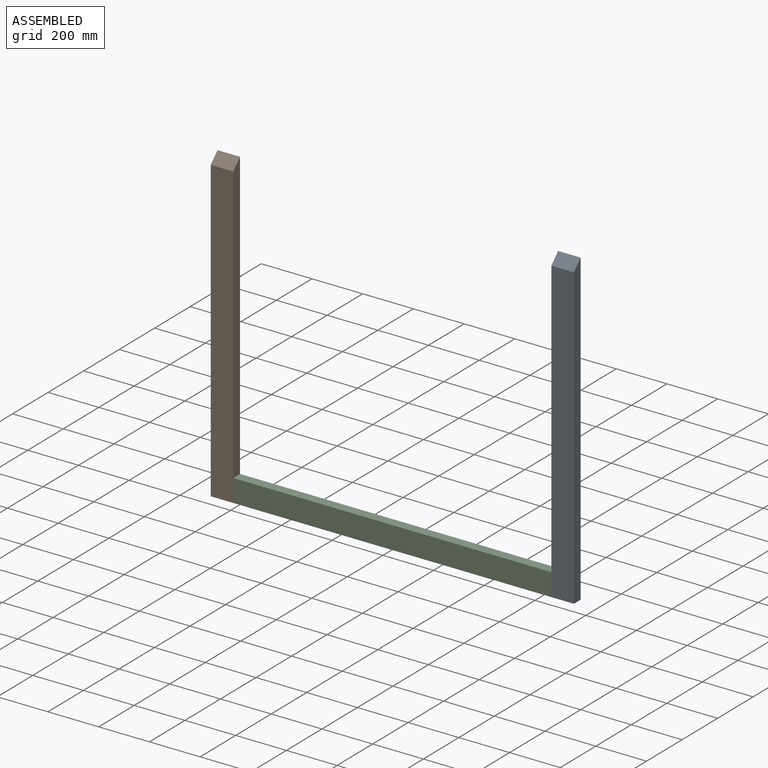
[diagram: assembled view]
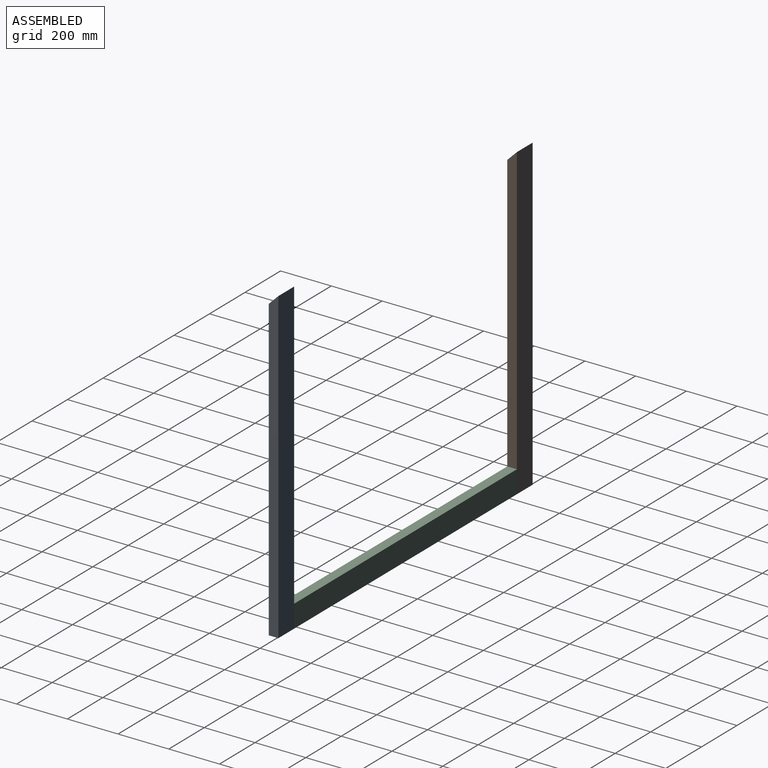
[diagram: assembled view, second angle]
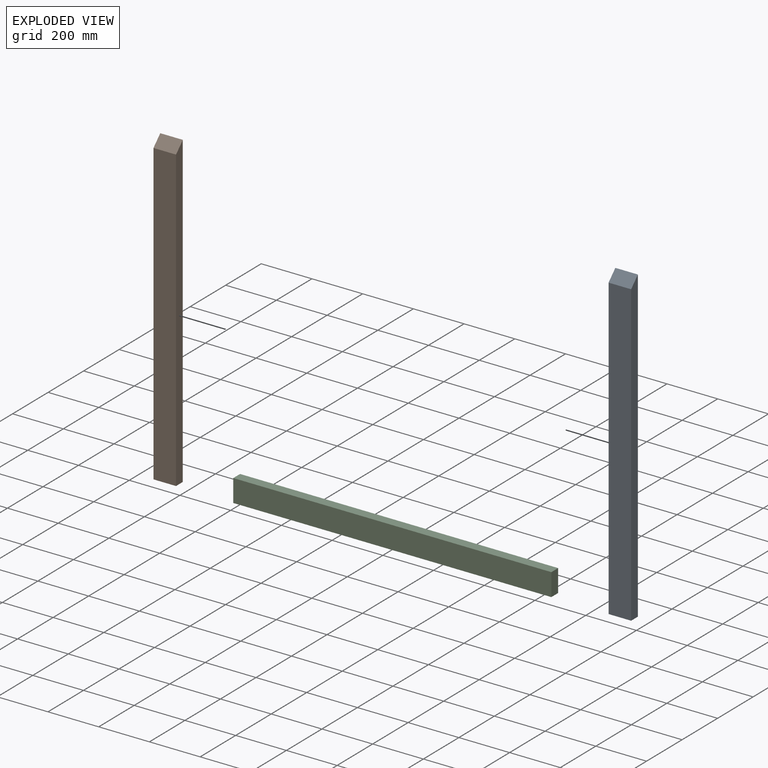
[diagram: exploded view]
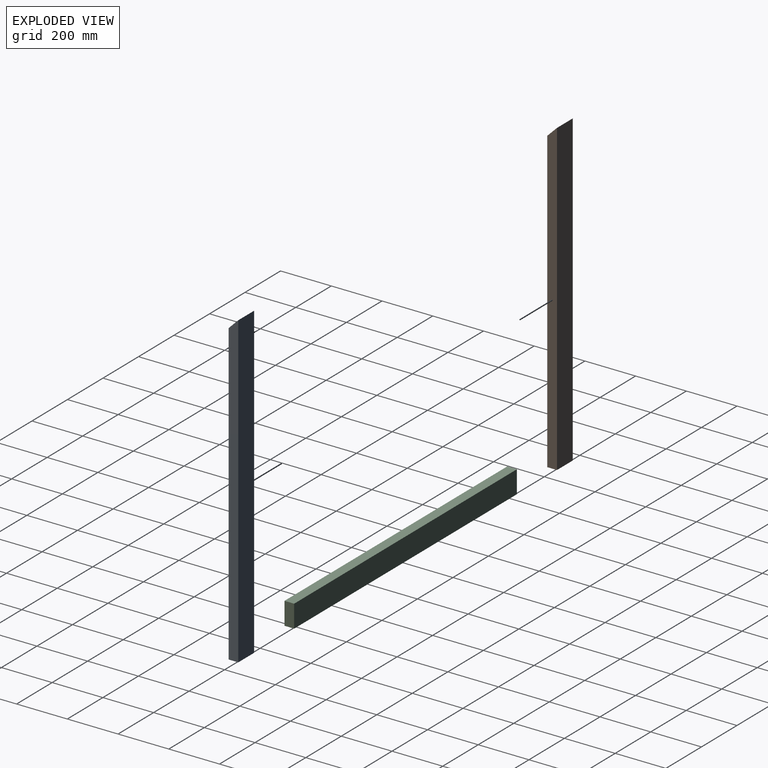
[diagram: exploded view, second angle]
ASSEMBLY  parts=3 mates=2
PART A: 6 faces, bbox 38.1x88.9x1219.2 mm
  f0: plane 1219.2x88.9mm, normal (-1,0,0), area 108386.9mm2, adj f1,f3,f4,f5
  f1: plane 88.9x38.1mm, normal (0,0,-1), area 3387.1mm2, adj f0,f2,f4,f5
  f2: plane 1181.1x88.9mm, normal (1,0,0), area 104999.8mm2, adj f1,f3,f4,f5
  f3: plane 88.9x38.1mm, normal (0.71,0,0.71), area 4790.1mm2, adj f0,f2,f4,f5
  f4: plane 1219.2x38.1mm, normal (0,-1,0), area 45725.7mm2, adj f0,f1,f2,f3
  f5: plane 1219.2x38.1mm, normal (0,1,0), area 45725.7mm2, adj f0,f1,f2,f3
PART B: same geometry as A
PART C: 6 faces, bbox 38.1x1254.1x88.9 mm
  f0: plane 1254.13x88.9mm, normal (-1,0,0), area 111491.7mm2, adj f1,f3,f4,f5
  f1: plane 1254.13x38.1mm, normal (0,0,-1), area 47782.2mm2, adj f0,f2,f4,f5
  f2: plane 1254.13x88.9mm, normal (1,0,0), area 111491.7mm2, adj f1,f3,f4,f5
  f3: plane 1254.13x38.1mm, normal (0,0,1), area 47782.2mm2, adj f0,f2,f4,f5
  f4: plane 88.9x38.1mm, normal (0,-1,0), area 3387.1mm2, adj f0,f1,f2,f3
  f5: plane 88.9x38.1mm, normal (0,1,0), area 3387.1mm2, adj f0,f1,f2,f3
PLACE A rot(axis=(0,0,-1),90deg) t=(1552.72,39.03,-28.08)mm
PLACE B rot(axis=(0,0,-1),90deg) t=(209.7,39.03,-28.08)mm
PLACE C rot(axis=(0,0,1),90deg) t=(209.7,0.93,-28.08)mm
MATE fastened B.f2 <-> C.f0  axis (0,-1,0) through (209.7,0.93,-28.08)mm
MATE fastened A.f2 <-> C.f0  axis (0,-1,0) through (1463.82,0.93,-28.08)mm
